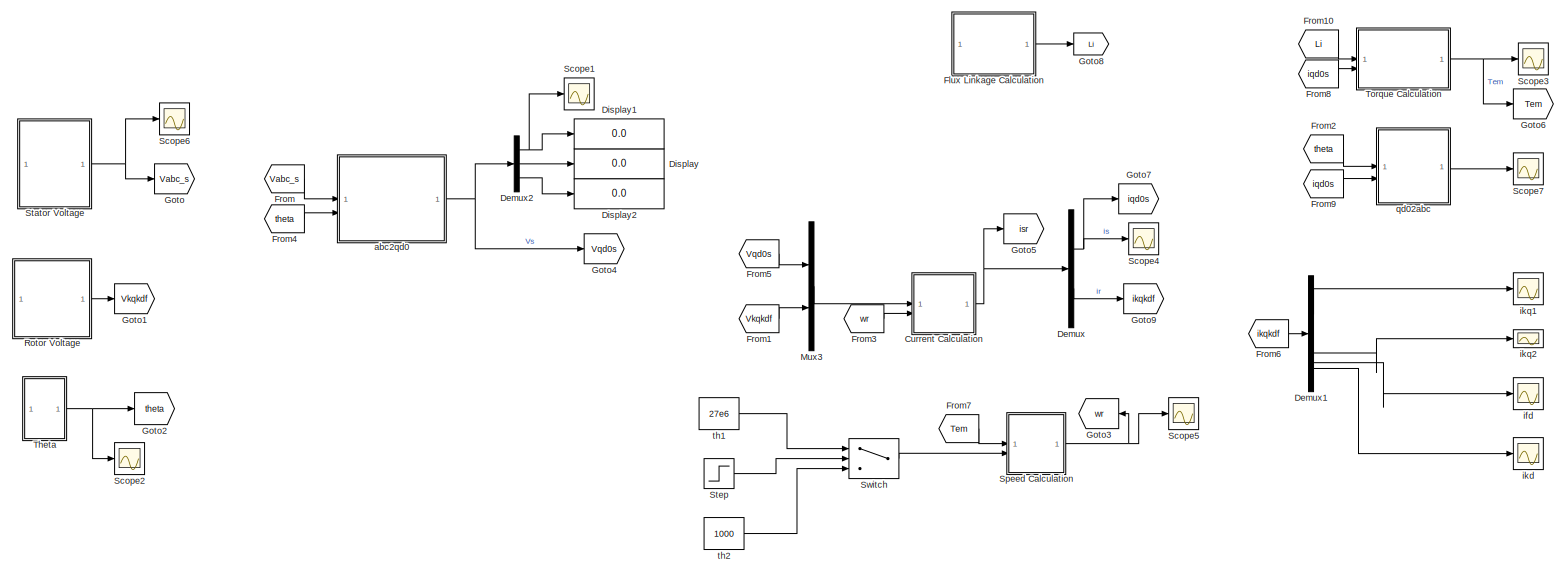
[diagram: root canvas - part 1/1, most of the canvas]
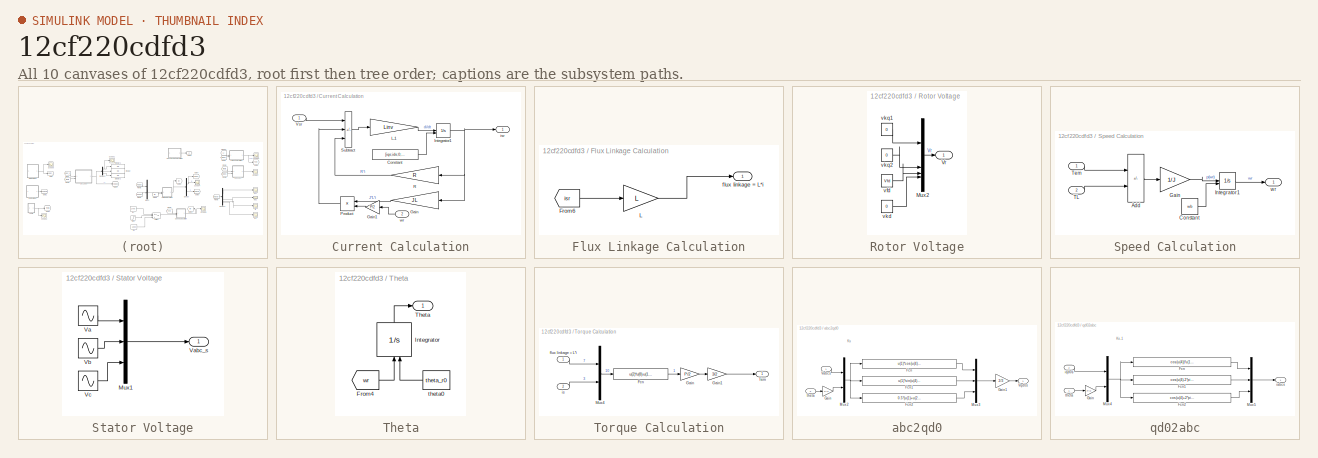
[diagram: thumbnail index - all 10 canvases of the model, root first then tree order]
MODEL slx_12cf220cdfd3
KIND model
CONFIG AbsTol = auto
CONFIG EnableMultiTasking = off
CONFIG FixedStep = auto
CONFIG MaxStep = auto
CONFIG MinStep = auto
CONFIG RelTol = 1e-6
CONFIG SampleTimeConstraint = Unconstrained
CONFIG SolverName = ode23t
CONFIG StartTime = 0.0
CONFIG StopTime = 20
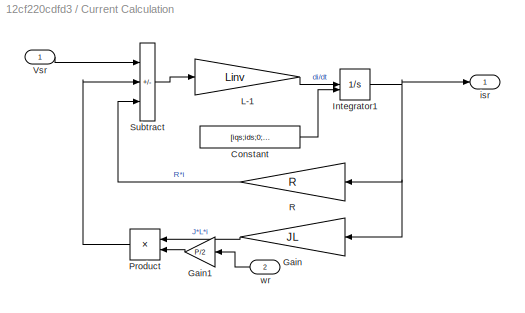
BLOCK [SubSystem] Current Calculation
BLOCK [Constant] Current Calculation/Constant
  Value = [iqs;ids;0;0;0;i_f;0]
BLOCK [Gain] Current Calculation/Gain
  Gain = JL
  Multiplication = Matrix(K*u) (u vector)
BLOCK [Gain] Current Calculation/Gain1
  Gain = P/2
BLOCK [Integrator] Current Calculation/Integrator1
  InitialCondition = [iqs;ids;0;0;0;i_f;0]
  InitialConditionSource = external
BLOCK [Gain] Current Calculation/L-1
  Gain = Linv
  Multiplication = Matrix(K*u) (u vector)
BLOCK [Product] Current Calculation/Product
BLOCK [Gain] Current Calculation/R
  Gain = R
  Multiplication = Matrix(K*u) (u vector)
BLOCK [Sum] Current Calculation/Subtract
  IconShape = rectangular
  Inputs = +--
BLOCK [Inport] Current Calculation/Vsr
BLOCK [Outport] Current Calculation/isr
BLOCK [Inport] Current Calculation/wr
  Port = 2
BLOCK [Demux] Demux
  Outputs = [3 4]
BLOCK [Demux] Demux1
BLOCK [Demux] Demux2
  Outputs = 3
BLOCK [Display] Display
  Decimation = 1
BLOCK [Display] Display1
  Decimation = 1
BLOCK [Display] Display2
  Decimation = 1
BLOCK [SubSystem] Flux Linkage Calculation
BLOCK [From] Flux Linkage Calculation/From6
  GotoTag = isr
  TagVisibility = global
BLOCK [Gain] Flux Linkage Calculation/L
  Gain = L
  Multiplication = Matrix(K*u) (u vector)
BLOCK [Outport] Flux Linkage Calculation/flux linkage = L*i
BLOCK [From] From
  GotoTag = Vabc_s
  TagVisibility = global
BLOCK [From] From1
  GotoTag = Vkqkdf
  TagVisibility = global
BLOCK [From] From10
  GotoTag = Li
  TagVisibility = global
BLOCK [From] From2
  GotoTag = theta
  TagVisibility = global
BLOCK [From] From3
  GotoTag = wr
  TagVisibility = global
BLOCK [From] From4
  GotoTag = theta
  TagVisibility = global
BLOCK [From] From5
  GotoTag = Vqd0s
  TagVisibility = global
BLOCK [From] From6
  GotoTag = ikqkdf
  TagVisibility = global
BLOCK [From] From7
  GotoTag = Tem
  TagVisibility = global
BLOCK [From] From8
  GotoTag = iqd0s
  TagVisibility = global
BLOCK [From] From9
  GotoTag = iqd0s
  TagVisibility = global
BLOCK [Goto] Goto
  GotoTag = Vabc_s
  TagVisibility = global
BLOCK [Goto] Goto1
  GotoTag = Vkqkdf
  TagVisibility = global
BLOCK [Goto] Goto2
  GotoTag = theta
  TagVisibility = global
BLOCK [Goto] Goto3
  GotoTag = wr
  TagVisibility = global
BLOCK [Goto] Goto4
  GotoTag = Vqd0s
  TagVisibility = global
BLOCK [Goto] Goto5
  GotoTag = isr
  TagVisibility = global
BLOCK [Goto] Goto6
  GotoTag = Tem
  TagVisibility = global
BLOCK [Goto] Goto7
  GotoTag = iqd0s
  TagVisibility = global
BLOCK [Goto] Goto8
  GotoTag = Li
  TagVisibility = global
BLOCK [Goto] Goto9
  GotoTag = ikqkdf
  TagVisibility = global
BLOCK [Mux] Mux3
  DisplayOption = bar
  Inputs = [3 4]
BLOCK [SubSystem] Rotor Voltage
BLOCK [Mux] Rotor Voltage/Mux2
  DisplayOption = bar
BLOCK [Outport] Rotor Voltage/Vr
BLOCK [Constant] Rotor Voltage/vfd
  Value = Vfd
BLOCK [Constant] Rotor Voltage/vkd
  Value = 0
BLOCK [Constant] Rotor Voltage/vkq1
  Value = 0
BLOCK [Constant] Rotor Voltage/vkq2
  Value = 0
BLOCK [Scope] Scope1
  Floating = off
  NumInputPorts = 1
  ScopeSpecificationString = Simulink.scopes.TimeScopeBlockCfg('CurrentConfiguration', extmgr.ConfigurationSet(extmgr.Configuration('Core','General UI',true),extmgr.Configuration('Core','Source UI',true),extmgr.Configuration('Sources','WiredSimulink',true,'DataLoggingVariableName','ScopeData10'),extmgr.Configuration('Visuals','Time Domain',true,'SerializedDisplays',{struct('MinYLimReal','12351.52953','MaxYLimReal','16771.9762...<+1398ch>
BLOCK [Scope] Scope2
  Floating = off
  NumInputPorts = 1
  ScopeSpecificationString = Simulink.scopes.TimeScopeBlockCfg('CurrentConfiguration', extmgr.ConfigurationSet(extmgr.Configuration('Core','General UI',true),extmgr.Configuration('Core','Source UI',true),extmgr.Configuration('Sources','WiredSimulink',true,'DataLoggingVariableName','ScopeData3'),extmgr.Configuration('Visuals','Time Domain',true,'SerializedDisplays',{struct('MinYLimReal','-29.45057','MaxYLimReal','265.05516','Y...<+1627ch>
BLOCK [Scope] Scope3
  Floating = off
  NumInputPorts = 1
  ScopeSpecificationString = Simulink.scopes.TimeScopeBlockCfg('CurrentConfiguration', extmgr.ConfigurationSet(extmgr.Configuration('Core','General UI',true),extmgr.Configuration('Core','Source UI',true),extmgr.Configuration('Sources','WiredSimulink',true,'SampleTime','0.01','DataLoggingVariableName','ScopeData4'),extmgr.Configuration('Visuals','Time Domain',true,'SerializedDisplays',{struct('MinYLimReal','-34397449.12439','M...<+1598ch>
BLOCK [Scope] Scope4
  Floating = off
  NumInputPorts = 1
  ScopeSpecificationString = Simulink.scopes.TimeScopeBlockCfg('CurrentConfiguration', extmgr.ConfigurationSet(extmgr.Configuration('Core','General UI',true),extmgr.Configuration('Core','Source UI',true),extmgr.Configuration('Sources','WiredSimulink',true,'SampleTime','0.01','DataLoggingVariableName','ScopeData5'),extmgr.Configuration('Visuals','Time Domain',true,'SerializedDisplays',{struct('MinYLimReal','-4578.64771','MaxYL...<+1673ch>
BLOCK [Scope] Scope5
  Floating = off
  NumInputPorts = 1
  ScopeSpecificationString = Simulink.scopes.TimeScopeBlockCfg('CurrentConfiguration', extmgr.ConfigurationSet(extmgr.Configuration('Core','General UI',true),extmgr.Configuration('Core','Source UI',true),extmgr.Configuration('Sources','WiredSimulink',true,'DataLoggingVariableName','ScopeData6'),extmgr.Configuration('Visuals','Time Domain',true,'SerializedDisplays',{struct('MinYLimReal','11.71075','MaxYLimReal','11.80822','YLa...<+1569ch>
BLOCK [Scope] Scope6
  Floating = off
  NumInputPorts = 1
  ScopeSpecificationString = Simulink.scopes.TimeScopeBlockCfg('CurrentConfiguration', extmgr.ConfigurationSet(extmgr.Configuration('Core','General UI',true),extmgr.Configuration('Core','Source UI',true),extmgr.Configuration('Sources','WiredSimulink',true,'DataLoggingVariableName','ScopeData2'),extmgr.Configuration('Visuals','Time Domain',true,'SerializedDisplays',{struct('MinYLimReal','7256.67469','MaxYLimReal','11255.11232'...<+1692ch>
BLOCK [Scope] Scope7
  Floating = off
  NumInputPorts = 1
  ScopeSpecificationString = Simulink.scopes.TimeScopeBlockCfg('CurrentConfiguration', extmgr.ConfigurationSet(extmgr.Configuration('Core','General UI',true),extmgr.Configuration('Core','Source UI',true),extmgr.Configuration('Sources','WiredSimulink',true,'DataLoggingVariableName','ScopeData1'),extmgr.Configuration('Visuals','Time Domain',true,'SerializedDisplays',{struct('MinYLimReal','-27534.08609','MaxYLimReal','27072.6711...<+1511ch>
BLOCK [SubSystem] Speed Calculation
BLOCK [Sum] Speed Calculation/Add
  IconShape = rectangular
  Inputs = +-
BLOCK [Constant] Speed Calculation/Constant
  Value = wb
BLOCK [Gain] Speed Calculation/Gain
  Gain = 1/J
BLOCK [Integrator] Speed Calculation/Integrator1
  InitialCondition = wb
  InitialConditionSource = external
BLOCK [Inport] Speed Calculation/TL
  Port = 2
BLOCK [Inport] Speed Calculation/Tem
BLOCK [Outport] Speed Calculation/wr
BLOCK [SubSystem] Stator Voltage
BLOCK [Mux] Stator Voltage/Mux1
  DisplayOption = bar
  Inputs = 3
BLOCK [Sin] Stator Voltage/Va
  Amplitude = Vabc_s
  Frequency = f*2*pi
  Phase = theta_e0+pi/2
  SampleTime = 0
BLOCK [Outport] Stator Voltage/Vabc_s
BLOCK [Sin] Stator Voltage/Vb 
  Amplitude = Vabc_s
  Frequency = f*2*pi
  Phase = theta_e0-2*pi/3+pi/2
  SampleTime = 0
BLOCK [Sin] Stator Voltage/Vc
  Amplitude = Vabc_s
  Frequency = f*2*pi
  Phase = theta_e0+2*pi/3+pi/2
  SampleTime = 0
BLOCK [Step] Step
  SampleTime = 0
  Time = 4
BLOCK [Switch] Switch
  Criteria = u2 > Threshold
  InputSameDT = off
  SaturateOnIntegerOverflow = off
BLOCK [SubSystem] Theta
BLOCK [From] Theta/From4
  GotoTag = wr
  TagVisibility = global
BLOCK [Integrator] Theta/Integrator
  InitialConditionSource = external
  NameLocation = right
BLOCK [Outport] Theta/Theta
BLOCK [Constant] Theta/theta0
  Value = theta_r0
BLOCK [SubSystem] Torque Calculation
BLOCK [Fcn] Torque Calculation/Fcn
  Expr = u(2)*u(8)-u(1)*u(9)
BLOCK [Gain] Torque Calculation/Gain
  Gain = P/2
BLOCK [Gain] Torque Calculation/Gain1
  Gain = 3/2
BLOCK [Mux] Torque Calculation/Mux4
  DisplayOption = bar
  Inputs = [7 3]
BLOCK [Outport] Torque Calculation/Tem
BLOCK [Inport] Torque Calculation/flux linkage = L*i
BLOCK [Inport] Torque Calculation/is
  Port = 2
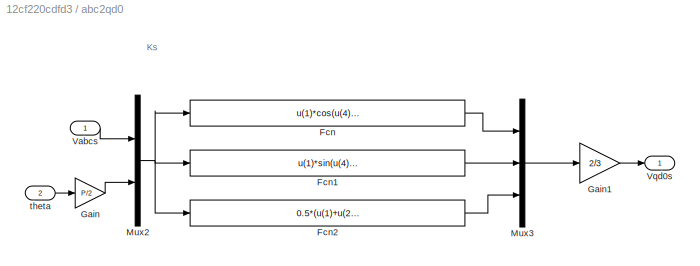
BLOCK [SubSystem] abc2qd0
BLOCK [Fcn] abc2qd0/Fcn
  Expr = u(1)*cos(u(4))+u(2)*cos(u(4)-2*pi/3)+u(3)*cos(u(4)+2*pi/3)
BLOCK [Fcn] abc2qd0/Fcn1
  Expr = u(1)*sin(u(4))+u(2)*sin(u(4)-2*pi/3)+u(3)*sin(u(4)+2*pi/3)
BLOCK [Fcn] abc2qd0/Fcn2
  Expr = 0.5*(u(1)+u(2)+u(3))
BLOCK [Gain] abc2qd0/Gain
  Gain = P/2
BLOCK [Gain] abc2qd0/Gain1
  Gain = 2/3
BLOCK [Mux] abc2qd0/Mux2
  DisplayOption = bar
  Inputs = [3 1]
BLOCK [Mux] abc2qd0/Mux3
  DisplayOption = bar
  Inputs = 3
BLOCK [Inport] abc2qd0/Vabcs
BLOCK [Outport] abc2qd0/Vqd0s
BLOCK [Inport] abc2qd0/theta 
  Port = 2
BLOCK [Scope] ifd
  Floating = off
  NumInputPorts = 1
  ScopeSpecificationString = Simulink.scopes.TimeScopeBlockCfg('CurrentConfiguration', extmgr.ConfigurationSet(extmgr.Configuration('Core','General UI',true),extmgr.Configuration('Core','Source UI',true),extmgr.Configuration('Sources','WiredSimulink',true,'SampleTime','0.01','DataLoggingVariableName','ScopeData7'),extmgr.Configuration('Visuals','Time Domain',true,'SerializedDisplays',{struct('MinYLimReal','-7589.26949','MaxYL...<+1511ch>
BLOCK [Scope] ikd
  Floating = off
  NumInputPorts = 1
  ScopeSpecificationString = Simulink.scopes.TimeScopeBlockCfg('CurrentConfiguration', extmgr.ConfigurationSet(extmgr.Configuration('Core','General UI',true),extmgr.Configuration('Core','Source UI',true),extmgr.Configuration('Sources','WiredSimulink',true,'SampleTime','0.01','DataLoggingVariableName','ScopeData8'),extmgr.Configuration('Visuals','Time Domain',true,'SerializedDisplays',{struct('MinYLimReal','-26713.83894','MaxY...<+1463ch>
BLOCK [Scope] ikq1
  Floating = off
  NumInputPorts = 1
  ScopeSpecificationString = Simulink.scopes.TimeScopeBlockCfg('CurrentConfiguration', extmgr.ConfigurationSet(extmgr.Configuration('Core','General UI',true),extmgr.Configuration('Core','Source UI',true),extmgr.Configuration('Sources','WiredSimulink',true,'SampleTime','0.01','DataLoggingVariableName','ScopeData9'),extmgr.Configuration('Visuals','Time Domain',true,'SerializedDisplays',{struct('MinYLimReal','-39767.69182','MaxY...<+1486ch>
BLOCK [Scope] ikq2
  Floating = off
  NumInputPorts = 1
  ScopeSpecificationString = Simulink.scopes.TimeScopeBlockCfg('CurrentConfiguration', extmgr.ConfigurationSet(extmgr.Configuration('Core','General UI',true),extmgr.Configuration('Core','Source UI',true),extmgr.Configuration('Sources','WiredSimulink',true,'SampleTime','0.01'),extmgr.Configuration('Visuals','Time Domain',true,'SerializedDisplays',{struct('MinYLimReal','-39767.69182','MaxYLimReal','38471.3424','YLabelReal','','...<+1422ch>
BLOCK [SubSystem] qd02abc
BLOCK [Fcn] qd02abc/Fcn
  Expr = cos(u(4))*u(1)+sin(u(4))*u(2)+u(3)
BLOCK [Fcn] qd02abc/Fcn1
  Expr = cos(u(4)-2*pi/3)*u(1)+sin(u(4)-2*pi/3)*u(2)+u(3)
BLOCK [Fcn] qd02abc/Fcn2
  Expr = cos(u(4)+2*pi/3)*u(1)+sin(u(4)+2*pi/3)*u(2)+u(3)
BLOCK [Gain] qd02abc/Gain
  Gain = P/2
BLOCK [Mux] qd02abc/Mux4
  DisplayOption = bar
  Inputs = [3 1]
BLOCK [Mux] qd02abc/Mux5
  DisplayOption = bar
  Inputs = 3
BLOCK [Outport] qd02abc/iabcs
BLOCK [Inport] qd02abc/iqd0s
  Port = 2
BLOCK [Inport] qd02abc/theta
BLOCK [Constant] th1
  Value = 27e6
BLOCK [Constant] th2
  Value = 1000
ANNOTATION abc2qd0: Ks
ANNOTATION qd02abc: Ks-1
LINE Current Calculation/Constant:1 -> Current Calculation/Integrator1:2
LINE Current Calculation/Gain1:1 -> Current Calculation/Product:2
LINE Current Calculation/Gain:1 -> Current Calculation/Product:1
NET Current Calculation/Integrator1:1 -> Current Calculation/Gain:1, Current Calculation/R:1, Current Calculation/isr:1
LINE Current Calculation/L-1:1 -> Current Calculation/Integrator1:1
LINE Current Calculation/Product:1 -> Current Calculation/Subtract:2
LINE Current Calculation/R:1 -> Current Calculation/Subtract:3
LINE Current Calculation/Subtract:1 -> Current Calculation/L-1:1
LINE Current Calculation/Vsr:1 -> Current Calculation/Subtract:1
LINE Current Calculation/wr:1 -> Current Calculation/Gain1:1
NET Current Calculation:1 -> Demux:1, Goto5:1
LINE Demux1:1 -> ikq1:1
LINE Demux1:2 -> ikq2:1
LINE Demux1:3 -> ifd:1
LINE Demux1:4 -> ikd:1
NET Demux2:1 -> Display1:1, Scope1:1
LINE Demux2:2 -> Display:1
LINE Demux2:3 -> Display2:1
NET Demux:1 -> Goto7:1, Scope4:1
LINE Demux:2 -> Goto9:1
LINE Flux Linkage Calculation/From6:1 -> Flux Linkage Calculation/L:1
LINE Flux Linkage Calculation/L:1 -> Flux Linkage Calculation/flux linkage = L*i:1
LINE Flux Linkage Calculation:1 -> Goto8:1
LINE From10:1 -> Torque Calculation:1
LINE From1:1 -> Mux3:2
LINE From2:1 -> qd02abc:1
LINE From3:1 -> Current Calculation:2
LINE From4:1 -> abc2qd0:2
LINE From5:1 -> Mux3:1
LINE From6:1 -> Demux1:1
LINE From7:1 -> Speed Calculation:1
LINE From8:1 -> Torque Calculation:2
LINE From9:1 -> qd02abc:2
LINE From:1 -> abc2qd0:1
LINE Mux3:1 -> Current Calculation:1
LINE Rotor Voltage/Mux2:1 -> Rotor Voltage/Vr:1
LINE Rotor Voltage/vfd:1 -> Rotor Voltage/Mux2:3
LINE Rotor Voltage/vkd:1 -> Rotor Voltage/Mux2:4
LINE Rotor Voltage/vkq1:1 -> Rotor Voltage/Mux2:1
LINE Rotor Voltage/vkq2:1 -> Rotor Voltage/Mux2:2
LINE Rotor Voltage:1 -> Goto1:1
LINE Speed Calculation/Add:1 -> Speed Calculation/Gain:1
LINE Speed Calculation/Constant:1 -> Speed Calculation/Integrator1:2
LINE Speed Calculation/Gain:1 -> Speed Calculation/Integrator1:1
LINE Speed Calculation/Integrator1:1 -> Speed Calculation/wr:1
LINE Speed Calculation/TL:1 -> Speed Calculation/Add:2
LINE Speed Calculation/Tem:1 -> Speed Calculation/Add:1
NET Speed Calculation:1 -> Goto3:1, Scope5:1
LINE Stator Voltage/Mux1:1 -> Stator Voltage/Vabc_s:1
LINE Stator Voltage/Va:1 -> Stator Voltage/Mux1:1
LINE Stator Voltage/Vb :1 -> Stator Voltage/Mux1:2
LINE Stator Voltage/Vc:1 -> Stator Voltage/Mux1:3
NET Stator Voltage:1 -> Goto:1, Scope6:1
LINE Step:1 -> Switch:2
LINE Switch:1 -> Speed Calculation:2
LINE Theta/From4:1 -> Theta/Integrator:1
LINE Theta/Integrator:1 -> Theta/Theta:1
LINE Theta/theta0:1 -> Theta/Integrator:2
NET Theta:1 -> Goto2:1, Scope2:1
LINE Torque Calculation/Fcn:1 -> Torque Calculation/Gain:1
LINE Torque Calculation/Gain1:1 -> Torque Calculation/Tem:1
LINE Torque Calculation/Gain:1 -> Torque Calculation/Gain1:1
LINE Torque Calculation/Mux4:1 -> Torque Calculation/Fcn:1
LINE Torque Calculation/flux linkage = L*i:1 -> Torque Calculation/Mux4:1
LINE Torque Calculation/is:1 -> Torque Calculation/Mux4:2
NET Torque Calculation:1 -> Goto6:1, Scope3:1
LINE abc2qd0/Fcn1:1 -> abc2qd0/Mux3:2
LINE abc2qd0/Fcn2:1 -> abc2qd0/Mux3:3
LINE abc2qd0/Fcn:1 -> abc2qd0/Mux3:1
LINE abc2qd0/Gain1:1 -> abc2qd0/Vqd0s:1
LINE abc2qd0/Gain:1 -> abc2qd0/Mux2:2
NET abc2qd0/Mux2:1 -> abc2qd0/Fcn1:1, abc2qd0/Fcn2:1, abc2qd0/Fcn:1
LINE abc2qd0/Mux3:1 -> abc2qd0/Gain1:1
LINE abc2qd0/Vabcs:1 -> abc2qd0/Mux2:1
LINE abc2qd0/theta :1 -> abc2qd0/Gain:1
NET abc2qd0:1 -> Demux2:1, Goto4:1
LINE qd02abc/Fcn1:1 -> qd02abc/Mux5:2
LINE qd02abc/Fcn2:1 -> qd02abc/Mux5:3
LINE qd02abc/Fcn:1 -> qd02abc/Mux5:1
LINE qd02abc/Gain:1 -> qd02abc/Mux4:2
NET qd02abc/Mux4:1 -> qd02abc/Fcn1:1, qd02abc/Fcn2:1, qd02abc/Fcn:1
LINE qd02abc/Mux5:1 -> qd02abc/iabcs:1
LINE qd02abc/iqd0s:1 -> qd02abc/Mux4:1
LINE qd02abc/theta:1 -> qd02abc/Gain:1
LINE qd02abc:1 -> Scope7:1
LINE th1:1 -> Switch:1
LINE th2:1 -> Switch:3
note: NET lines group one-source signal fan-out (src -> all destinations, sorted); 1:1 wires keep LINE
